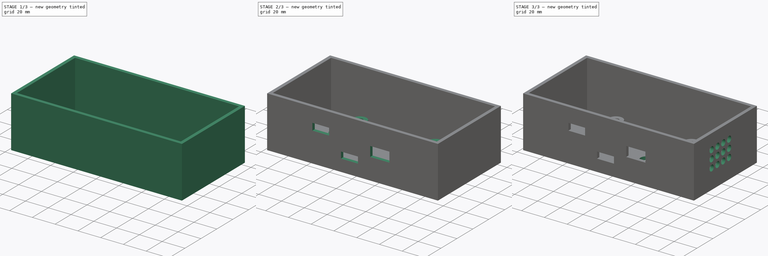
[diagram: build sequence overview — one tinted view per stage of 3, left to right]
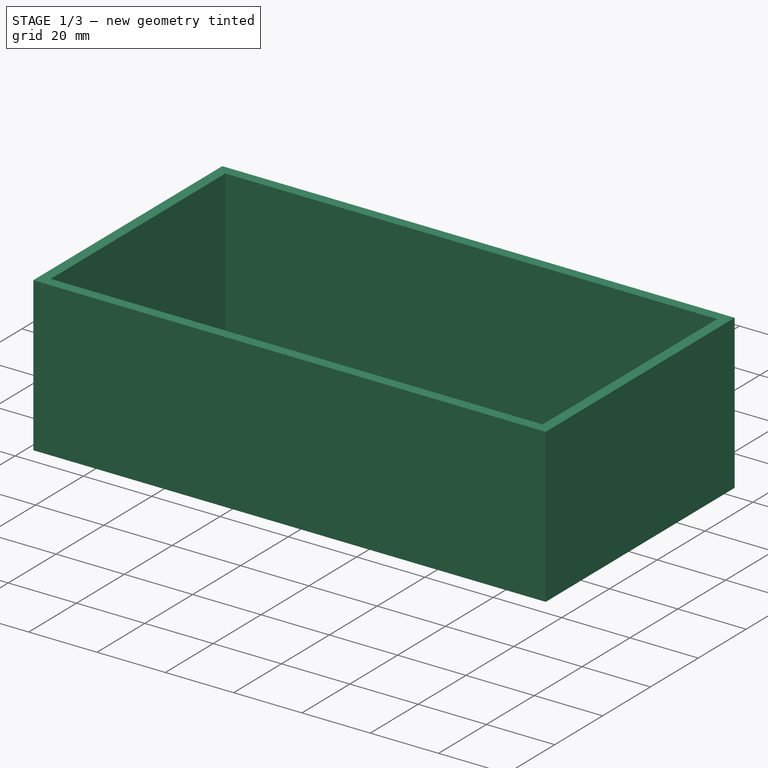
[diagram: stage 1 of 3 — iso view after this stage's code; geometry added in this stage tinted green]
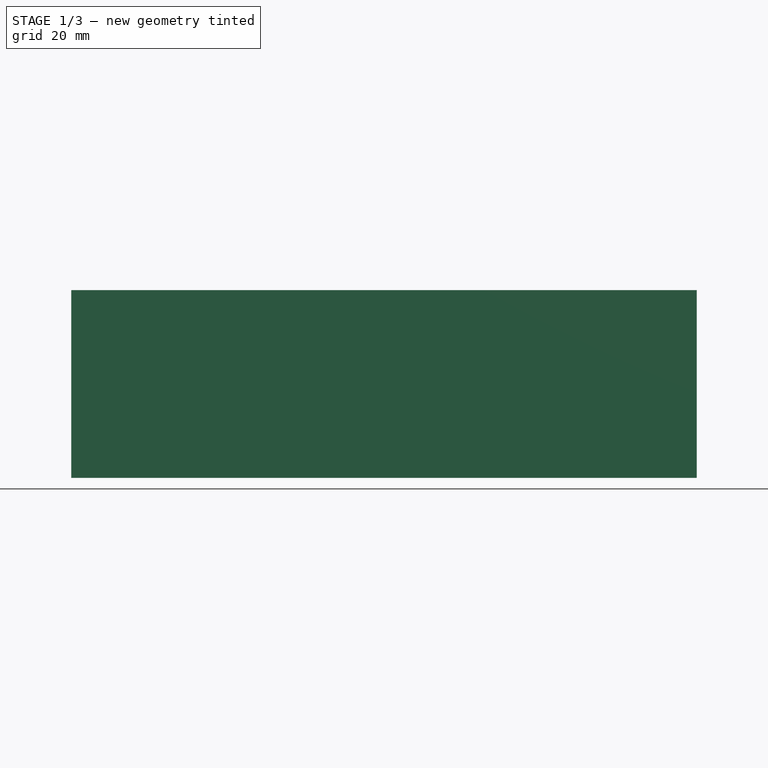
[diagram: stage 1 of 3 — front view after this stage's code; geometry added in this stage tinted green]
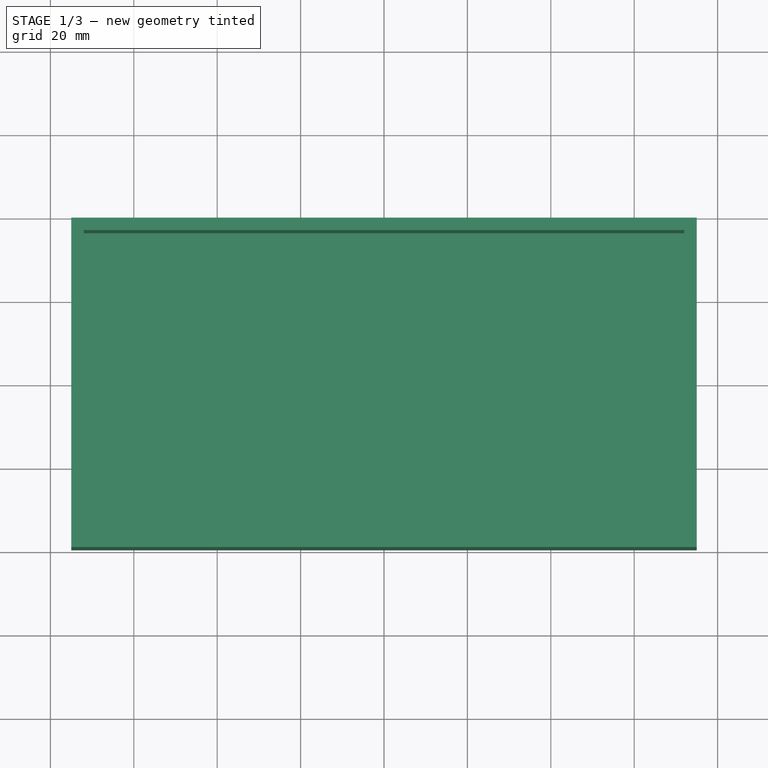
[diagram: stage 1 of 3 — top view after this stage's code; geometry added in this stage tinted green]
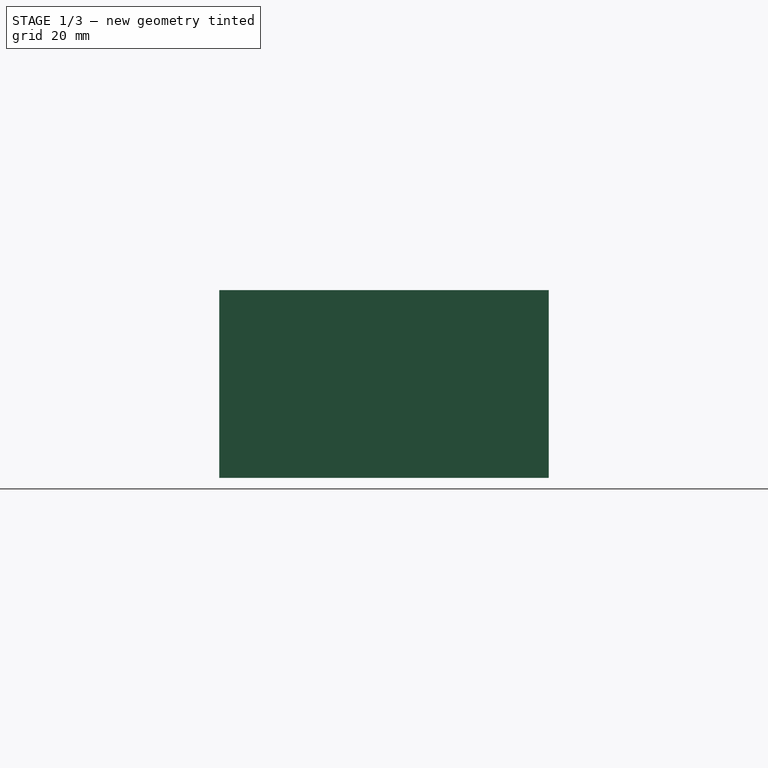
[diagram: stage 1 of 3 — right view after this stage's code; geometry added in this stage tinted green]
FCSTD DOCUMENT  (FreeCAD 0.19R22611 (Git))
Label: ModelBoxDemo
License: All rights reserved
LicenseURL: http://en.wikipedia.org/wiki/All_rights_reserved
objects: Sketcher::SketchObject×6, PartDesign::Pocket×4, PartDesign::Plane×3, PartDesign::Pad×2, PartDesign::Body×1, App::Part×1
note: 22 computed .brp shape members not serialized (recipe doc carries the construction recipe); baked Part::Feature solids carry a one-line shape summary decoded from their .brp

FEATURE [Sketcher::SketchObject] Sketch
  MapMode = 5
  Support = -> [XY_Plane001]
  sketch-geometry (4):
    g0: LineSegment StartX=-75 StartY=39.5 StartZ=0 EndX=75 EndY=39.5 EndZ=0
    g1: LineSegment StartX=75 StartY=39.5 StartZ=0 EndX=75 EndY=-39.5 EndZ=0
    g2: LineSegment StartX=75 StartY=-39.5 StartZ=0 EndX=-75 EndY=-39.5 EndZ=0
    g3: LineSegment StartX=-75 StartY=-39.5 StartZ=0 EndX=-75 EndY=39.5 EndZ=0
  constraints (11):
    c: Coincident(g0,g1)
    c: Coincident(g1,g2)
    c: Coincident(g2,g3)
    c: Coincident(g3,g0)
    c: Horizontal(g0)
    c: Horizontal(g2)
    c: Vertical(g1)
    c: Vertical(g3)
    c: Symmetric(g0,g1,g-1)
    c: DistanceY(g3,g3) = 79  'width'
    c: DistanceX(g0,g0) = 150  'length'
FEATURE [PartDesign::Pad] Pad
  Direction = (1,1,1)
  Length = 45
  Length2 = 100
  Profile = -> Sketch
  Reversed = true
  Type = 0
FEATURE [Sketcher::SketchObject] Sketch001
  MapMode = 5
  Support = -> [XY_Plane001]
  expr: Constraints[10] = <<Sketch>>.Constraints.width - 6mm
  expr: Constraints[9] = <<Sketch>>.Constraints.length - 6mm
  sketch-geometry (4):
    g0: LineSegment StartX=-72 StartY=36.5 StartZ=0 EndX=72 EndY=36.5 EndZ=0
    g1: LineSegment StartX=72 StartY=36.5 StartZ=0 EndX=72 EndY=-36.5 EndZ=0
    g2: LineSegment StartX=72 StartY=-36.5 StartZ=0 EndX=-72 EndY=-36.5 EndZ=0
    g3: LineSegment StartX=-72 StartY=-36.5 StartZ=0 EndX=-72 EndY=36.5 EndZ=0
  constraints (11):
    c: Coincident(g0,g1)
    c: Coincident(g1,g2)
    c: Coincident(g2,g3)
    c: Coincident(g3,g0)
    c: Horizontal(g0)
    c: Horizontal(g2)
    c: Vertical(g1)
    c: Vertical(g3)
    c: Symmetric(g0,g1,g-1)
    c: DistanceX(g0,g0) = 144
    c: DistanceY(g3,g3) = 73
FEATURE [PartDesign::Pocket] Pocket
  BaseFeature = -> Pad
  Length = 42
  Length2 = 100
  Profile = -> Sketch001
  Type = 0
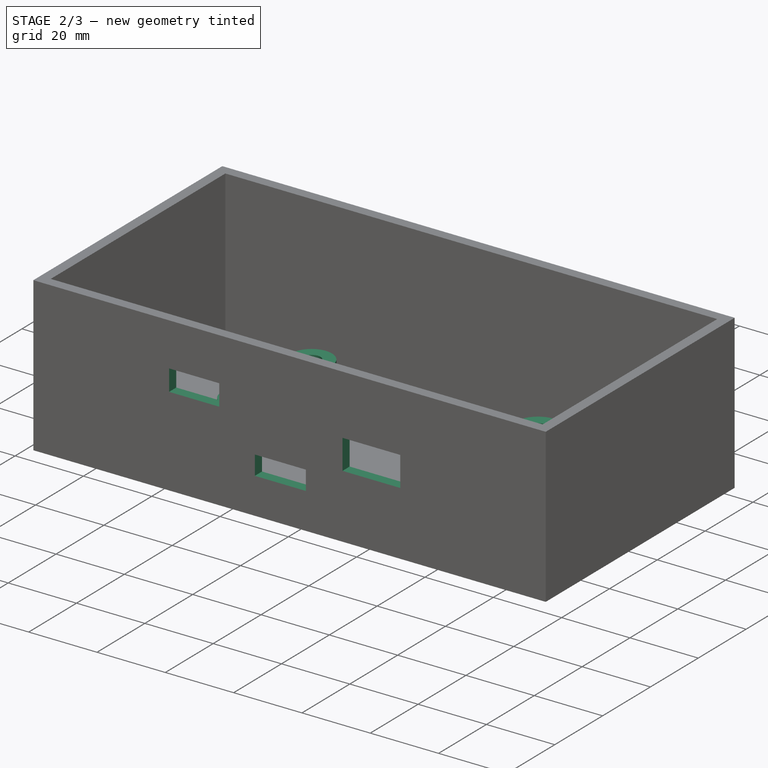
[diagram: stage 2 of 3 — iso view after this stage's code; geometry added in this stage tinted green]
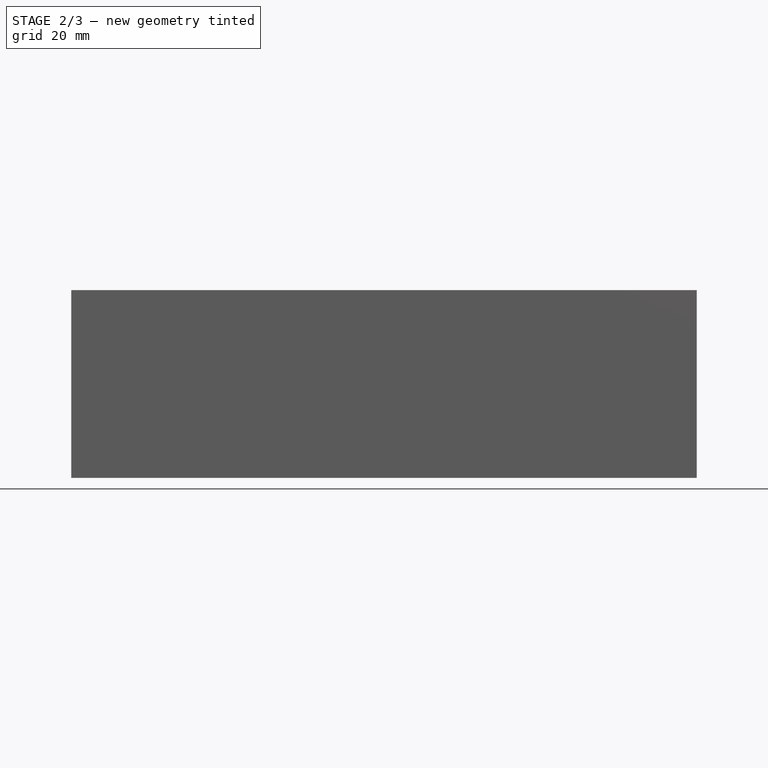
[diagram: stage 2 of 3 — front view after this stage's code; geometry added in this stage tinted green]
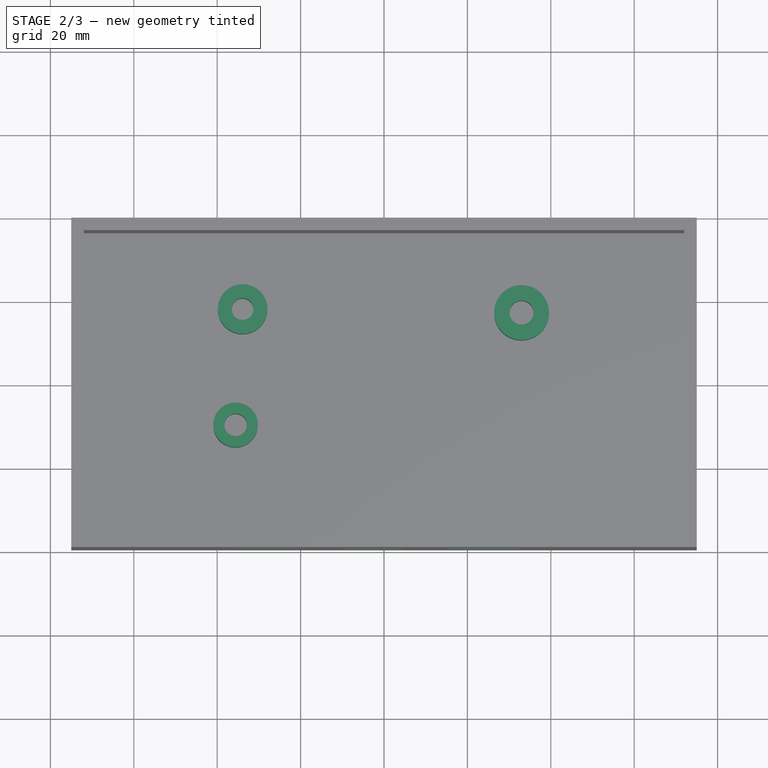
[diagram: stage 2 of 3 — top view after this stage's code; geometry added in this stage tinted green]
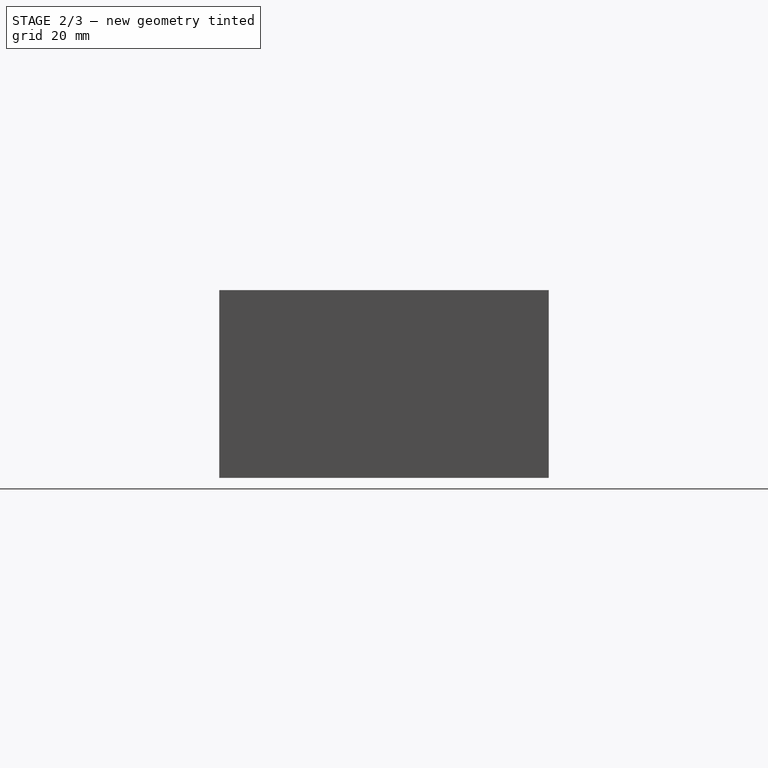
[diagram: stage 2 of 3 — right view after this stage's code; geometry added in this stage tinted green]
FEATURE [PartDesign::Plane] DatumPlane
  AttachmentOffset = pos=(0,0,39.5) rot=(0,0,1;0rad)
  Length = 60
  MapMode = 5
  Placement = pos=(0,-39.5,-8.8e-15) rot=(1,0,0;1.5708rad)
  ResizeMode = 0
  Support = -> [XZ_Plane001]
  Width = 60
  expr: .AttachmentOffset.Base.z = <<Sketch>>.Constraints.width / 2
FEATURE [Sketcher::SketchObject] Sketch002
  MapMode = 5
  Placement = pos=(0,-39.5,-8.8e-15) rot=(1,0,0;1.5708rad)
  Support = -> [DatumPlane]
  sketch-geometry (12):
    g0: LineSegment StartX=-35.2502 StartY=-12.7148 StartZ=0 EndX=-20.587 EndY=-12.7148 EndZ=0
    g1: LineSegment StartX=-20.587 StartY=-12.7148 StartZ=0 EndX=-20.587 EndY=-18.9185 EndZ=0
    g2: LineSegment StartX=-20.587 StartY=-18.9185 StartZ=0 EndX=-35.2502 EndY=-18.9185 EndZ=0
    g3: LineSegment StartX=-35.2502 StartY=-18.9185 StartZ=0 EndX=-35.2502 EndY=-12.7148 EndZ=0
    g4: LineSegment StartX=15.5071 StartY=-17.5086 StartZ=0 EndX=32.4261 EndY=-17.5086 EndZ=0
    g5: LineSegment StartX=32.4261 StartY=-17.5086 StartZ=0 EndX=32.4261 EndY=-26.2501 EndZ=0
    g6: LineSegment StartX=32.4261 StartY=-26.2501 StartZ=0 EndX=15.5071 EndY=-26.2501 EndZ=0
    g7: LineSegment StartX=15.5071 StartY=-26.2501 StartZ=0 EndX=15.5071 EndY=-17.5086 EndZ=0
    g8: LineSegment StartX=-10.1535 StartY=-28.788 StartZ=0 EndX=4.79165 EndY=-28.788 EndZ=0
    g9: LineSegment StartX=4.79165 StartY=-28.788 StartZ=0 EndX=4.79165 EndY=-34.4277 EndZ=0
    g10: LineSegment StartX=4.79165 StartY=-34.4277 StartZ=0 EndX=-10.1535 EndY=-34.4277 EndZ=0
    g11: LineSegment StartX=-10.1535 StartY=-34.4277 StartZ=0 EndX=-10.1535 EndY=-28.788 EndZ=0
  constraints (24):
    c: Coincident(g0,g1)
    c: Coincident(g1,g2)
    c: Coincident(g2,g3)
    c: Coincident(g3,g0)
    c: Horizontal(g0)
    c: Horizontal(g2)
    c: Vertical(g1)
    c: Vertical(g3)
    c: Coincident(g4,g5)
    c: Coincident(g5,g6)
    c: Coincident(g6,g7)
    c: Coincident(g7,g4)
    c: Horizontal(g4)
    c: Horizontal(g6)
    c: Vertical(g5)
    c: Vertical(g7)
    c: Coincident(g8,g9)
    c: Coincident(g9,g10)
    c: Coincident(g10,g11)
    c: Coincident(g11,g8)
    c: Horizontal(g8)
    c: Horizontal(g10)
    c: Vertical(g9)
    c: Vertical(g11)
FEATURE [PartDesign::Pocket] Pocket001
  BaseFeature = -> Pocket
  Length = 5
  Length2 = 100
  Profile = -> Sketch002
  Type = 2
FEATURE [PartDesign::Plane] DatumPlane001
  AttachmentOffset = pos=(0,0,-42) rot=(0,0,1;0rad)
  Length = 60
  MapMode = 5
  Placement = pos=(0,0,-42) rot=(0,0,1;0rad)
  ResizeMode = 0
  Support = -> [XY_Plane001]
  Width = 60
  expr: .AttachmentOffset.Base.z = -<<Pocket>>.Length
FEATURE [Sketcher::SketchObject] Sketch003
  MapMode = 5
  Placement = pos=(0,0,-42) rot=(0,0,1;0rad)
  Support = -> [DatumPlane001]
  sketch-geometry (6):
    g0: Circle CenterX=-33.9107 CenterY=18.1552 CenterZ=0 NormalX=0 NormalY=0 NormalZ=1 AngleXU=0 Radius=5.9492
    g1: Circle CenterX=-35.5934 CenterY=-9.60911 CenterZ=0 NormalX=0 NormalY=0 NormalZ=1 AngleXU=0 Radius=5.35429
    g2: Circle CenterX=32.979 CenterY=17.3131 CenterZ=0 NormalX=0 NormalY=0 NormalZ=1 AngleXU=0 Radius=6.58455
    g3: Circle CenterX=32.979 CenterY=17.3131 CenterZ=0 NormalX=0 NormalY=0 NormalZ=1 AngleXU=0 Radius=2.87843
    g4: Circle CenterX=-33.9107 CenterY=18.1552 CenterZ=0 NormalX=0 NormalY=0 NormalZ=1 AngleXU=0 Radius=2.58893
    g5: Circle CenterX=-35.5934 CenterY=-9.60911 CenterZ=0 NormalX=0 NormalY=0 NormalZ=1 AngleXU=0 Radius=2.69695
  constraints (3):
    c: Coincident(g3,g2)
    c: Coincident(g4,g0)
    c: Coincident(g5,g1)
FEATURE [PartDesign::Pad] Pad001
  BaseFeature = -> Pocket001
  Direction = (1,1,1)
  Length = 10
  Length2 = 100
  Profile = -> Sketch003
  Type = 0
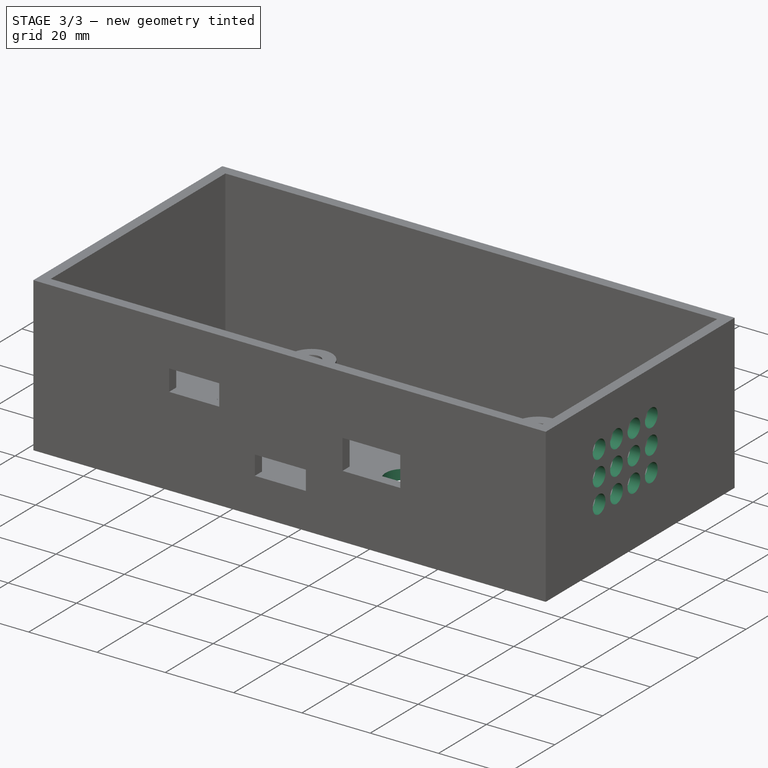
[diagram: stage 3 of 3 — iso view after this stage's code; geometry added in this stage tinted green]
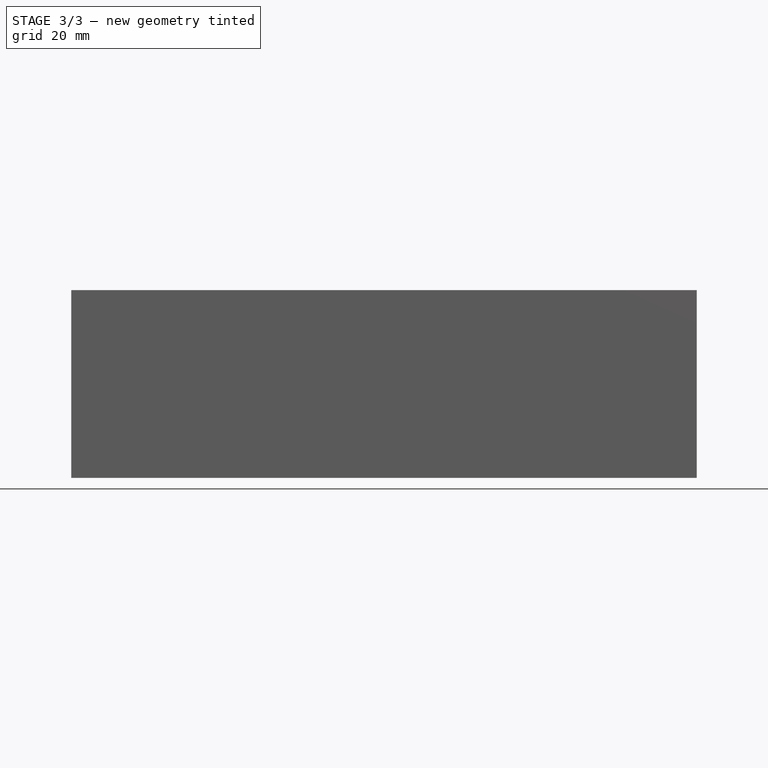
[diagram: stage 3 of 3 — front view after this stage's code; geometry added in this stage tinted green]
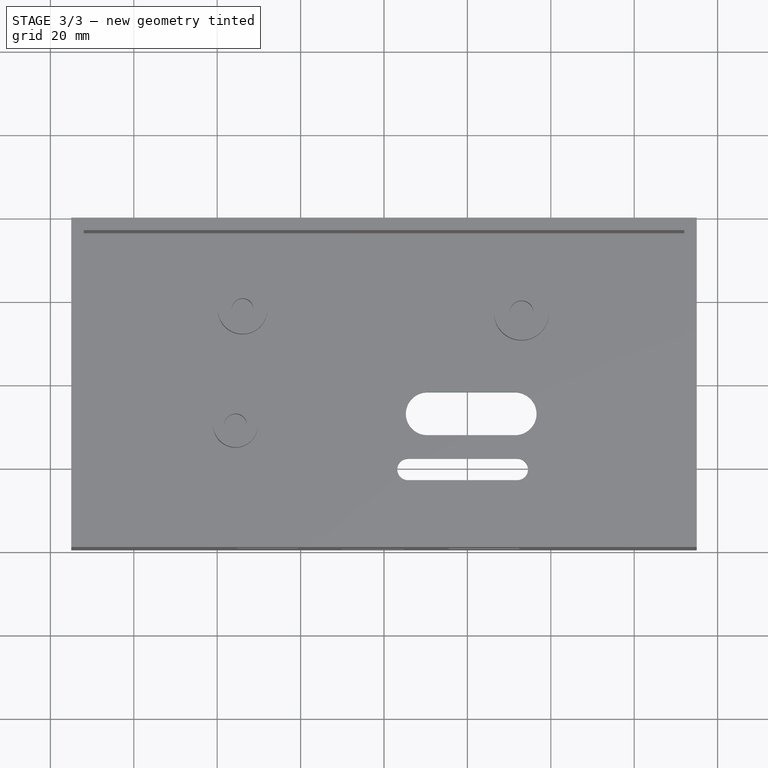
[diagram: stage 3 of 3 — top view after this stage's code; geometry added in this stage tinted green]
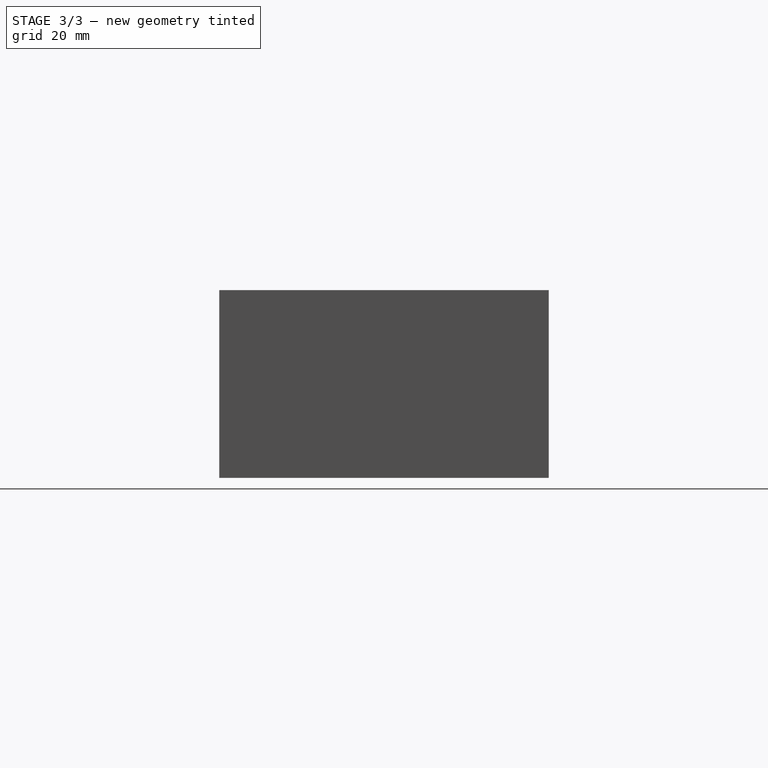
[diagram: stage 3 of 3 — right view after this stage's code; geometry added in this stage tinted green]
FEATURE [Sketcher::SketchObject] Sketch004
  MapMode = 5
  Placement = pos=(0,0,-42) rot=(0,0,1;0rad)
  Support = -> [DatumPlane001]
  sketch-geometry (8):
    g0: ArcOfCircle CenterX=31.4425 CenterY=-6.78939 CenterZ=0 NormalX=0 NormalY=0 NormalZ=1 AngleXU=0 Radius=5.13809 StartAngle=4.71239 EndAngle=7.85398
    g1: ArcOfCircle CenterX=10.3763 CenterY=-6.78939 CenterZ=0 NormalX=0 NormalY=0 NormalZ=1 AngleXU=0 Radius=5.13809 StartAngle=1.5708 EndAngle=4.71239
    g2: LineSegment StartX=31.4425 StartY=-1.65131 StartZ=0 EndX=10.3763 EndY=-1.65131 EndZ=0
    g3: LineSegment StartX=31.4425 StartY=-11.9275 StartZ=0 EndX=10.3763 EndY=-11.9275 EndZ=0
    g4: ArcOfCircle CenterX=31.9563 CenterY=-20.1484 CenterZ=0 NormalX=0 NormalY=0 NormalZ=1 AngleXU=0 Radius=2.56906 StartAngle=4.71239 EndAngle=7.85398
    g5: ArcOfCircle CenterX=5.75203 CenterY=-20.1484 CenterZ=0 NormalX=0 NormalY=0 NormalZ=1 AngleXU=0 Radius=2.56906 StartAngle=1.5708 EndAngle=4.71239
    g6: LineSegment StartX=31.9563 StartY=-17.5794 StartZ=0 EndX=5.75203 EndY=-17.5794 EndZ=0
    g7: LineSegment StartX=31.9563 StartY=-22.7175 StartZ=0 EndX=5.75203 EndY=-22.7175 EndZ=0
  constraints (12):
    c: Tangent(g0,g3)
    c: Tangent(g0,g2)
    c: Tangent(g2,g1)
    c: Tangent(g3,g1)
    c: Horizontal(g2)
    c: Equal(g0,g1)
    c: Tangent(g4,g7)
    c: Tangent(g4,g6)
    c: Tangent(g6,g5)
    c: Tangent(g7,g5)
    c: Horizontal(g6)
    c: Equal(g4,g5)
FEATURE [PartDesign::Pocket] Pocket002
  BaseFeature = -> Pad001
  Length = 5
  Length2 = 100
  Profile = -> Sketch004
  Type = 2
FEATURE [PartDesign::Plane] DatumPlane002
  AttachmentOffset = pos=(0,0,75) rot=(0,0,1;0rad)
  Length = 60
  MapMode = 5
  Placement = pos=(75,-1.67e-14,1.67e-14) rot=(0.57735,0.57735,0.57735;2.0944rad)
  ResizeMode = 0
  Support = -> [YZ_Plane001]
  Width = 60
  expr: .AttachmentOffset.Base.z = <<Sketch>>.Constraints.length / 2
FEATURE [Sketcher::SketchObject] Sketch005
  MapMode = 5
  Placement = pos=(75,-1.67e-14,1.67e-14) rot=(0.57735,0.57735,0.57735;2.0944rad)
  Support = -> [DatumPlane002]
  sketch-geometry (23):
    g0: Circle CenterX=-17.1697 CenterY=-13.141 CenterZ=0 NormalX=0 NormalY=0 NormalZ=1 AngleXU=0 Radius=2.66253
    g1: Circle CenterX=-9.89616 CenterY=-13.141 CenterZ=0 NormalX=0 NormalY=0 NormalZ=1 AngleXU=0 Radius=2.66253
    g2: LineSegment [constr] StartX=-17.1697 StartY=-13.141 StartZ=0 EndX=-9.89616 EndY=-13.141 EndZ=0
    g3: Circle CenterX=-2.6226 CenterY=-13.141 CenterZ=0 NormalX=0 NormalY=0 NormalZ=1 AngleXU=0 Radius=2.66253
    g4: LineSegment [constr] StartX=-9.89616 StartY=-13.141 StartZ=0 EndX=-2.6226 EndY=-13.141 EndZ=0
    g5: Circle CenterX=4.65095 CenterY=-13.141 CenterZ=0 NormalX=0 NormalY=0 NormalZ=1 AngleXU=0 Radius=2.66253
    g6: LineSegment [constr] StartX=-2.6226 StartY=-13.141 StartZ=0 EndX=4.65095 EndY=-13.141 EndZ=0
    g7: Circle CenterX=-17.1697 CenterY=-20.4146 CenterZ=0 NormalX=0 NormalY=0 NormalZ=1 AngleXU=0 Radius=2.66253
    g8: LineSegment [constr] StartX=-17.1697 StartY=-13.141 StartZ=0 EndX=-17.1697 EndY=-20.4146 EndZ=0
    g9: Circle CenterX=-9.89616 CenterY=-20.4146 CenterZ=0 NormalX=0 NormalY=0 NormalZ=1 AngleXU=0 Radius=2.66253
    g10: LineSegment [constr] StartX=-17.1697 StartY=-20.4146 StartZ=0 EndX=-9.89616 EndY=-20.4146 EndZ=0
    g11: Circle CenterX=-2.6226 CenterY=-20.4146 CenterZ=0 NormalX=0 NormalY=0 NormalZ=1 AngleXU=0 Radius=2.66253
    g12: LineSegment [constr] StartX=-9.89616 StartY=-20.4146 StartZ=0 EndX=-2.6226 EndY=-20.4146 EndZ=0
    g13: Circle CenterX=4.65095 CenterY=-20.4146 CenterZ=0 NormalX=0 NormalY=0 NormalZ=1 AngleXU=0 Radius=2.66253
    g14: LineSegment [constr] StartX=-2.6226 StartY=-20.4146 StartZ=0 EndX=4.65095 EndY=-20.4146 EndZ=0
    g15: Circle CenterX=-17.1697 CenterY=-27.6881 CenterZ=0 NormalX=0 NormalY=0 NormalZ=1 AngleXU=0 Radius=2.66253
    g16: LineSegment [constr] StartX=-17.1697 StartY=-20.4146 StartZ=0 EndX=-17.1697 EndY=-27.6881 EndZ=0
    g17: Circle CenterX=-9.89616 CenterY=-27.6881 CenterZ=0 NormalX=0 NormalY=0 NormalZ=1 AngleXU=0 Radius=2.66253
    g18: LineSegment [constr] StartX=-17.1697 StartY=-27.6881 StartZ=0 EndX=-9.89616 EndY=-27.6881 EndZ=0
    g19: Circle CenterX=-2.6226 CenterY=-27.6881 CenterZ=0 NormalX=0 NormalY=0 NormalZ=1 AngleXU=0 Radius=2.66253
    g20: LineSegment [constr] StartX=-9.89616 StartY=-27.6881 StartZ=0 EndX=-2.6226 EndY=-27.6881 EndZ=0
    g21: Circle CenterX=4.65095 CenterY=-27.6881 CenterZ=0 NormalX=0 NormalY=0 NormalZ=1 AngleXU=0 Radius=2.66253
    g22: LineSegment [constr] StartX=-2.6226 StartY=-27.6881 StartZ=0 EndX=4.65095 EndY=-27.6881 EndZ=0
  constraints (44):
    c: Coincident(g0,g2)
    c: Coincident(g1,g2)
    c: Distance(g2) = 7.27356
    c: Angle(g2) = 0
    c: Coincident(g1,g4)
    c: Coincident(g3,g4)
    c: Equal(g2,g4)
    c: Parallel(g4,g2)
    c: Coincident(g3,g6)
    c: Coincident(g5,g6)
    c: Equal(g2,g6)
    c: Parallel(g6,g2)
    c: Coincident(g0,g8)
    c: Coincident(g7,g8)
    c: Equal(g8,g2)
    c: Perpendicular(g8,g2)
    c: Coincident(g7,g10)
    c: Coincident(g9,g10)
    c: Equal(g2,g10)
    c: Parallel(g10,g2)
    c: Coincident(g9,g12)
    c: Coincident(g11,g12)
    c: Equal(g2,g12)
    c: Parallel(g12,g2)
    c: Coincident(g11,g14)
    c: Coincident(g13,g14)
    c: Equal(g2,g14)
    c: Parallel(g14,g2)
    c: Coincident(g7,g16)
    c: Coincident(g15,g16)
    c: Equal(g8,g16)
    c: Perpendicular(g16,g2)
    c: Coincident(g15,g18)
    c: Coincident(g17,g18)
    c: Equal(g2,g18)
    c: Parallel(g18,g2)
    c: Coincident(g17,g20)
    c: Coincident(g19,g20)
    c: Equal(g2,g20)
    c: Parallel(g20,g2)
    c: Coincident(g19,g22)
    c: Coincident(g21,g22)
    c: Equal(g2,g22)
    c: Parallel(g22,g2)
FEATURE [PartDesign::Pocket] Pocket003
  BaseFeature = -> Pocket002
  Length = 5
  Length2 = 100
  Profile = -> Sketch005
  Type = 2
FEATURE [PartDesign::Body] Body
  Group = -> [Sketch,Pad,Sketch001,Pocket,DatumPlane,Sketch002,Pocket001,DatumPlane001,Sketch003,Pad001,Sketch004,Pocket002,DatumPlane002,Sketch005,Pocket003]
  Origin = -> Origin001
  Tip = -> Pocket003
FEATURE [App::Part] Part  label="Part-New"
  Group = -> [Body]
  Origin = -> Origin
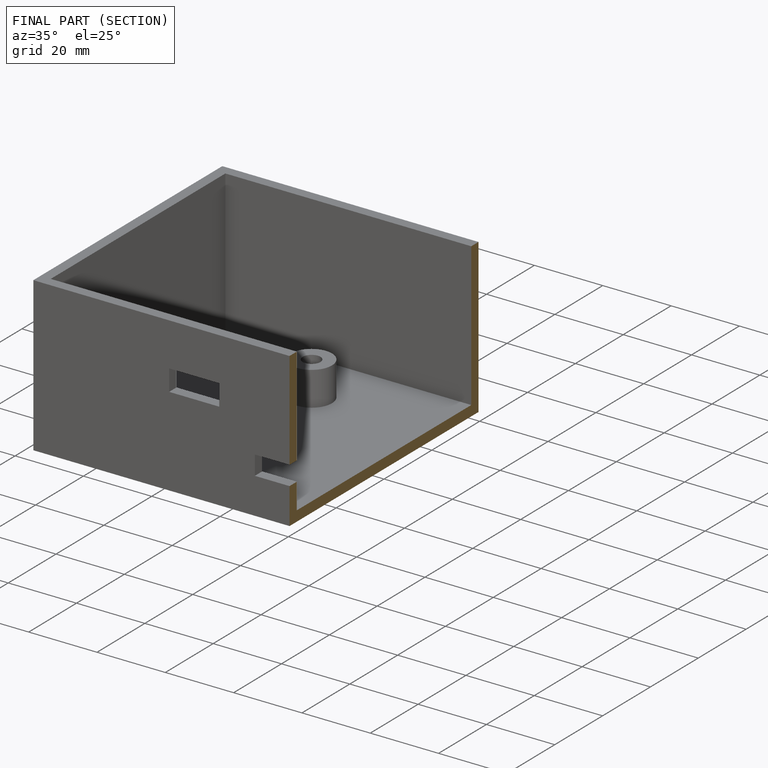
[diagram: finished part — half-section view (interior)]
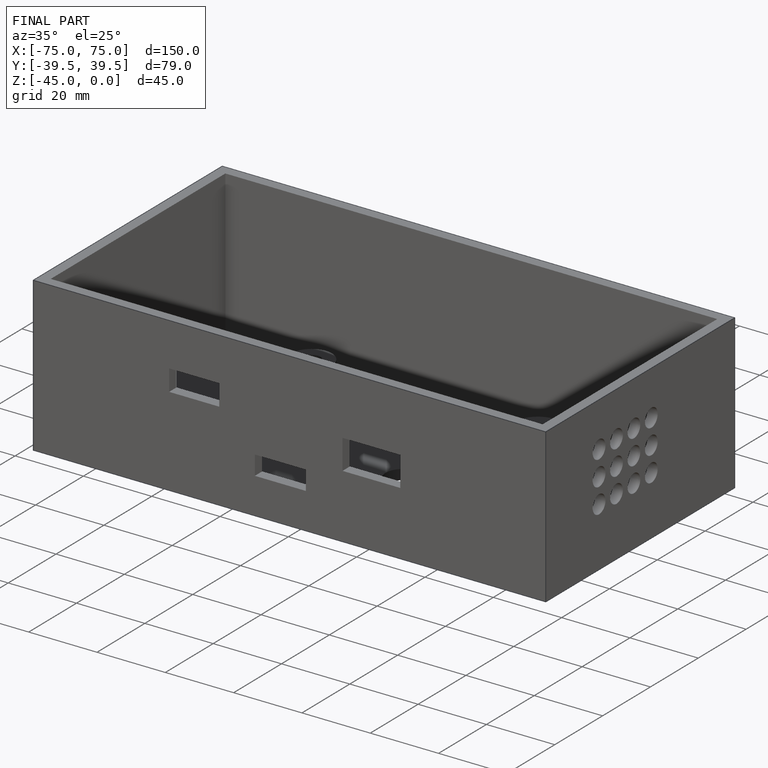
[diagram: finished part — iso view with bounding-box wireframe]
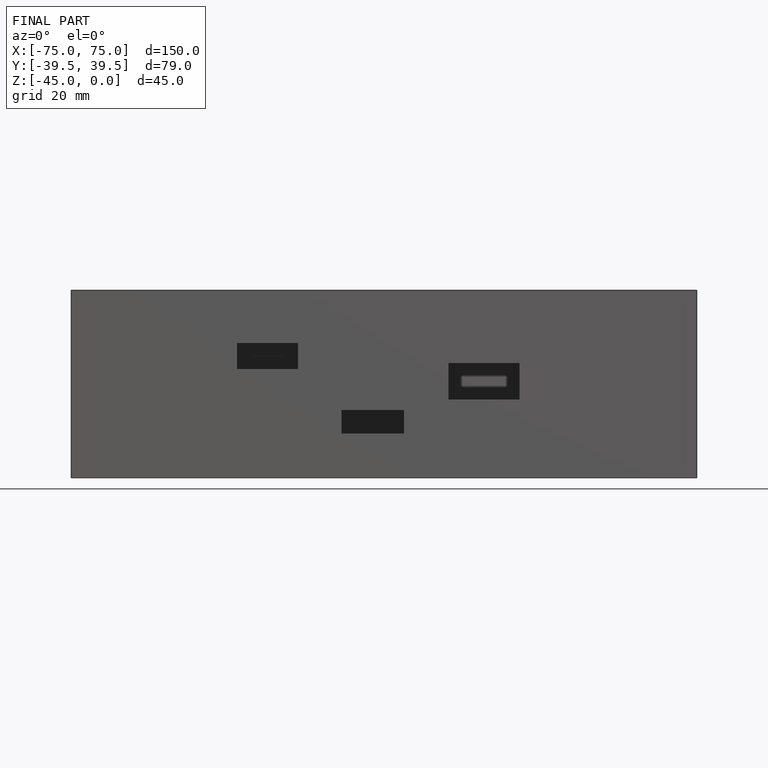
[diagram: finished part — front view with bounding-box wireframe]
